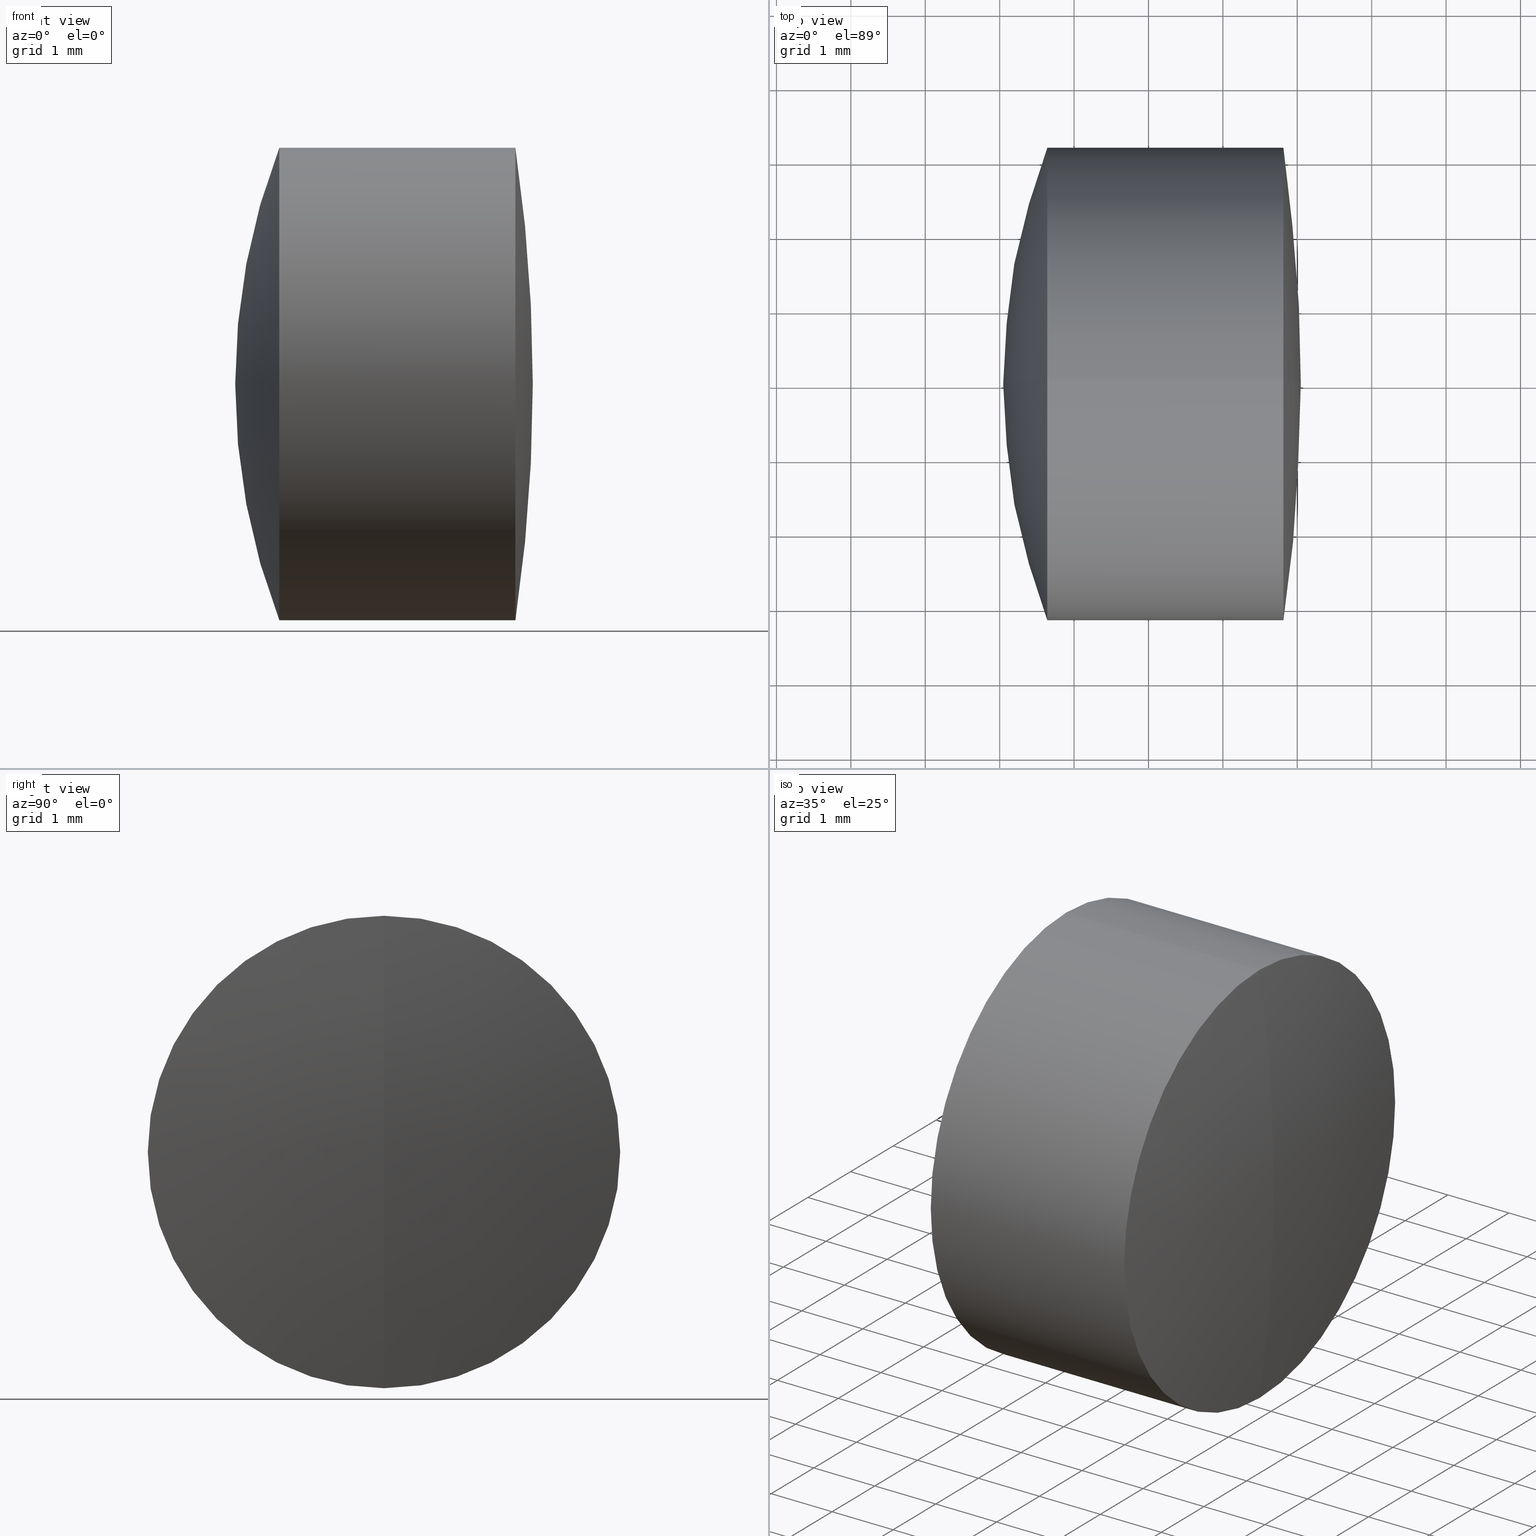
[diagram: canonical four-view strip — front | top / right | iso, engineering-drawing reading convention]
A machine part, canonical four-view strip (front | top / right | iso — engineering-drawing reading convention). The complete STEP part file that produces these views, byte-faithful:
ISO-10303-21;
HEADER;
FILE_DESCRIPTION (( 'STEP AP214' ),
    '1' );
FILE_NAME ('145014.STEP',
    '2019-05-08T06:32:17',
    ( 'user' ),
    ( '΢���й�' ),
    'SwSTEP 2.0',
    'SolidWorks 2016',
    '' );
FILE_SCHEMA (( 'AUTOMOTIVE_DESIGN' ));
ENDSEC;

DATA;
#1 = VECTOR ( 'NONE', #223, 1000.000000000000000 ) ;
#2 = DIRECTION ( 'NONE',  ( -1.000000000000000000, -0.0000000000000000000, -0.0000000000000000000 ) ) ;
#3 = ORIENTED_EDGE ( 'NONE', *, *, #89, .F. ) ;
#4 = DIRECTION ( 'NONE',  ( 0.0000000000000000000, 1.000000000000000000, 0.0000000000000000000 ) ) ;
#5 = CIRCLE ( 'NONE', #19, 3.175000000000000300 ) ;
#6 =( NAMED_UNIT ( * ) PLANE_ANGLE_UNIT ( ) SI_UNIT ( $, .RADIAN. ) );
#7 = DIRECTION ( 'NONE',  ( 0.0000000000000000000, 1.000000000000000000, -0.0000000000000000000 ) ) ;
#8 =( NAMED_UNIT ( * ) PLANE_ANGLE_UNIT ( ) SI_UNIT ( $, .RADIAN. ) );
#10 = DIRECTION ( 'NONE',  ( 0.0000000000000000000, 0.0000000000000000000, 1.000000000000000000 ) ) ;
#9 = DIRECTION ( 'NONE',  ( 0.0000000000000000000, 0.0000000000000000000, 1.000000000000000000 ) ) ;
#12 = DIRECTION ( 'NONE',  ( -1.000000000000000000, -0.0000000000000000000, -0.0000000000000000000 ) ) ;
#11 = DIRECTION ( 'NONE',  ( 0.0000000000000000000, 0.0000000000000000000, 1.000000000000000000 ) ) ;
#13 = ORIENTED_EDGE ( 'NONE', *, *, #86, .F. ) ;
#14 = VERTEX_POINT ( 'NONE', #37 ) ;
#15 = SPHERICAL_SURFACE ( 'NONE', #333, 6.599999999999998800 ) ;
#16 = SURFACE_STYLE_USAGE ( .BOTH. , #117 ) ;
#17 = UNCERTAINTY_MEASURE_WITH_UNIT (LENGTH_MEASURE( 1.000000000000000100E-005 ), #196, 'distance_accuracy_value', 'NONE');
#18 = PRESENTATION_LAYER_ASSIGNMENT (  '', '', ( #345 ) ) ;
#19 = AXIS2_PLACEMENT_3D ( 'NONE', #225, #36, #200 ) ;
#20 = ADVANCED_FACE ( 'NONE', ( #49 ), #53, .T. ) ;
#21 = EDGE_LOOP ( 'NONE', ( #337, #96, #157, #346 ) ) ;
#22 = CYLINDRICAL_SURFACE ( 'NONE', #217, 3.175000000000001600 ) ;
#23 = VERTEX_POINT ( 'NONE', #201 ) ;
#24 = VECTOR ( 'NONE', #28, 1000.000000000000000 ) ;
#25 = DIRECTION ( 'NONE',  ( 0.0000000000000000000, -1.224646799147353500E-016, 1.000000000000000000 ) ) ;
#26 = CARTESIAN_POINT ( 'NONE',  ( 2.813910375090960900, 3.888253587292846100E-016, -3.174999999999998000 ) ) ;
#28 = DIRECTION ( 'NONE',  ( -1.000000000000000000, -0.0000000000000000000, -0.0000000000000000000 ) ) ;
#27 = SURFACE_STYLE_USAGE ( .BOTH. , #218 ) ;
#30 = CARTESIAN_POINT ( 'NONE',  ( -9.702612178336682500, 0.0000000000000000000, 3.175000000000000300 ) ) ;
#29 = CARTESIAN_POINT ( 'NONE',  ( 0.7335758746331534400, 0.0000000000000000000, 3.175000000000004700 ) ) ;
#31 = AXIS2_PLACEMENT_3D ( 'NONE', #299, #268, #178 ) ;
#32 = SURFACE_STYLE_USAGE ( .BOTH. , #221 ) ;
#33 = ORIENTED_EDGE ( 'NONE', *, *, #124, .T. ) ;
#34 = FILL_AREA_STYLE_COLOUR ( '', #202 ) ;
#35 = ORIENTED_EDGE ( 'NONE', *, *, #124, .F. ) ;
#37 = CARTESIAN_POINT ( 'NONE',  ( -0.3598363093995273800, 0.0000000000000000000, -3.174999999999998500 ) ) ;
#36 = DIRECTION ( 'NONE',  ( -1.000000000000000000, -0.0000000000000000000, -0.0000000000000000000 ) ) ;
#38 = VECTOR ( 'NONE', #140, 1000.000000000000000 ) ;
#39 = CARTESIAN_POINT ( 'NONE',  ( -18.65256057380979400, 0.0000000000000000000, 0.0000000000000000000 ) ) ;
#40 = CARTESIAN_POINT ( 'NONE',  ( -9.702612178336682500, 3.888253587292846600E-016, -3.175000000000000300 ) ) ;
#41 = ADVANCED_FACE ( 'NONE', ( #129 ), #275, .T. ) ;
#42 = EDGE_LOOP ( 'NONE', ( #114, #33, #119 ) ) ;
#43 = FACE_OUTER_BOUND ( 'NONE', #42, .T. ) ;
#44 = ORIENTED_EDGE ( 'NONE', *, *, #205, .T. ) ;
#45 = EDGE_LOOP ( 'NONE', ( #339, #298, #233 ) ) ;
#46 = COLOUR_RGB ( '',1.000000000000000000, 1.000000000000000000, 1.000000000000000000 ) ;
#47 = AXIS2_PLACEMENT_3D ( 'NONE', #294, #87, #258 ) ;
#48 = ORIENTED_EDGE ( 'NONE', *, *, #123, .T. ) ;
#49 = FACE_OUTER_BOUND ( 'NONE', #273, .T. ) ;
#50 = DIRECTION ( 'NONE',  ( -1.000000000000000000, -0.0000000000000000000, -0.0000000000000000000 ) ) ;
#51 = VERTEX_POINT ( 'NONE', #88 ) ;
#52 = SPHERICAL_SURFACE ( 'NONE', #98, 6.599999999999997900 ) ;
#53 = CYLINDRICAL_SURFACE ( 'NONE', #212, 3.175000000000000300 ) ;
#54 = APPLICATION_PROTOCOL_DEFINITION ( 'draft international standard', 'automotive_design', 1998, #248 ) ;
#56 = DIRECTION ( 'NONE',  ( 0.0000000000000000000, 0.0000000000000000000, 1.000000000000000000 ) ) ;
#55 = FILL_AREA_STYLE ('',( #193 ) ) ;
#57 = FILL_AREA_STYLE ('',( #34 ) ) ;
#59 = DIRECTION ( 'NONE',  ( 0.0000000000000000000, 1.000000000000000000, 0.0000000000000000000 ) ) ;
#58 = DIRECTION ( 'NONE',  ( 0.0000000000000000000, 1.000000000000000000, 0.0000000000000000000 ) ) ;
#60 = DIRECTION ( 'NONE',  ( 0.0000000000000000000, 1.000000000000000000, 0.0000000000000000000 ) ) ;
#61 = DIRECTION ( 'NONE',  ( 0.0000000000000000000, 0.0000000000000000000, -1.000000000000000000 ) ) ;
#62 = VERTEX_POINT ( 'NONE', #259 ) ;
#63 = FACE_OUTER_BOUND ( 'NONE', #208, .T. ) ;
#64 = ORIENTED_EDGE ( 'NONE', *, *, #166, .T. ) ;
#65 = DIRECTION ( 'NONE',  ( -0.0000000000000000000, 1.000000000000000000, 1.224646799147353200E-016 ) ) ;
#66 = AXIS2_PLACEMENT_3D ( 'NONE', #265, #60, #11 ) ;
#67 = EDGE_CURVE ( 'NONE', #23, #343, #279, .T. ) ;
#68 = ADVANCED_FACE ( 'NONE', ( #43 ), #136, .T. ) ;
#69 = ORIENTED_EDGE ( 'NONE', *, *, #148, .T. ) ;
#70 = EDGE_CURVE ( 'NONE', #51, #14, #293, .T. ) ;
#71 = LINE ( 'NONE', #40, #134 ) ;
#72 = MANIFOLD_SOLID_BREP ( '��ת3', #288 ) ;
#73 = PRODUCT_DEFINITION_SHAPE ( 'NONE', 'NONE',  #262 ) ;
#74 = DIRECTION ( 'NONE',  ( 0.0000000000000000000, 0.0000000000000000000, 1.000000000000000000 ) ) ;
#75 = ORIENTED_EDGE ( 'NONE', *, *, #89, .T. ) ;
#76 = ORIENTED_EDGE ( 'NONE', *, *, #205, .F. ) ;
#77 = DIRECTION ( 'NONE',  ( 0.0000000000000000000, -1.000000000000000000, 0.0000000000000000000 ) ) ;
#78 = SURFACE_STYLE_FILL_AREA ( #231 ) ;
#80 = DIRECTION ( 'NONE',  ( -1.000000000000000000, -0.0000000000000000000, -0.0000000000000000000 ) ) ;
#79 = PRODUCT_CONTEXT ( 'NONE', #250, 'mechanical' ) ;
#81 = CARTESIAN_POINT ( 'NONE',  ( 0.7335758746331577700, 0.0000000000000000000, 0.0000000000000000000 ) ) ;
#82 = DIRECTION ( 'NONE',  ( -1.000000000000000000, -0.0000000000000000000, -0.0000000000000000000 ) ) ;
#83 = AXIS2_PLACEMENT_3D ( 'NONE', #141, #315, #172 ) ;
#85 = DIRECTION ( 'NONE',  ( -1.000000000000000000, -0.0000000000000000000, -0.0000000000000000000 ) ) ;
#84 = DIRECTION ( 'NONE',  ( 0.0000000000000000000, 0.0000000000000000000, 1.000000000000000000 ) ) ;
#86 = EDGE_CURVE ( 'NONE', #343, #323, #261, .T. ) ;
#88 = CARTESIAN_POINT ( 'NONE',  ( -0.3598363093995273800, -3.888253587292844600E-016, 3.174999999999998900 ) ) ;
#87 = DIRECTION ( 'NONE',  ( 0.0000000000000000000, -1.000000000000000000, -1.224646799147353200E-016 ) ) ;
#89 = EDGE_CURVE ( 'NONE', #14, #296, #206, .T. ) ;
#90 = ORIENTED_EDGE ( 'NONE', *, *, #92, .T. ) ;
#91 = CIRCLE ( 'NONE', #204, 6.599999999999997900 ) ;
#92 = EDGE_CURVE ( 'NONE', #173, #51, #329, .T. ) ;
#93 = PRESENTATION_STYLE_ASSIGNMENT (( #27 ) ) ;
#94 = EDGE_CURVE ( 'NONE', #173, #111, #185, .T. ) ;
#95 = ADVANCED_FACE ( 'NONE', ( #103 ), #245, .T. ) ;
#96 = ORIENTED_EDGE ( 'NONE', *, *, #106, .T. ) ;
#97 = CIRCLE ( 'NONE', #147, 3.174999999999998000 ) ;
#98 = AXIS2_PLACEMENT_3D ( 'NONE', #113, #58, #222 ) ;
#99 = ORIENTED_EDGE ( 'NONE', *, *, #213, .T. ) ;
#100 = EDGE_CURVE ( 'NONE', #138, #323, #326, .T. ) ;
#101 = ORIENTED_EDGE ( 'NONE', *, *, #94, .F. ) ;
#102 = DIRECTION ( 'NONE',  ( 0.0000000000000000000, -1.000000000000000000, 0.0000000000000000000 ) ) ;
#103 = FACE_OUTER_BOUND ( 'NONE', #153, .T. ) ;
#104 = AXIS2_PLACEMENT_3D ( 'NONE', #194, #7, #169 ) ;
#105 = DIRECTION ( 'NONE',  ( 0.0000000000000000000, -1.224646799147353200E-016, 1.000000000000000000 ) ) ;
#106 = EDGE_CURVE ( 'NONE', #138, #23, #97, .T. ) ;
#107 = DIRECTION ( 'NONE',  ( 0.0000000000000000000, 0.0000000000000000000, 1.000000000000000000 ) ) ;
#108 = SHAPE_DEFINITION_REPRESENTATION ( #73, #177 ) ;
#109 = CARTESIAN_POINT ( 'NONE',  ( -0.5519199926577972300, 3.888253587292848100E-016, -3.175000000000001600 ) ) ;
#110 = CARTESIAN_POINT ( 'NONE',  ( -5.052560573809792300, 0.0000000000000000000, -6.776263578034402700E-018 ) ) ;
#111 = VERTEX_POINT ( 'NONE', #192 ) ;
#112 = CARTESIAN_POINT ( 'NONE',  ( 7.847439426190207200, 0.0000000000000000000, 4.513112964038374400E-016 ) ) ;
#113 = CARTESIAN_POINT ( 'NONE',  ( -5.052560573809792300, 0.0000000000000000000, -6.776263578034402700E-018 ) ) ;
#114 = ORIENTED_EDGE ( 'NONE', *, *, #156, .F. ) ;
#115 = CARTESIAN_POINT ( 'NONE',  ( -9.702612178336682500, 0.0000000000000000000, 0.0000000000000000000 ) ) ;
#116 = ORIENTED_EDGE ( 'NONE', *, *, #123, .F. ) ;
#117 = SURFACE_SIDE_STYLE ('',( #78 ) ) ;
#118 = FACE_OUTER_BOUND ( 'NONE', #336, .T. ) ;
#119 = ORIENTED_EDGE ( 'NONE', *, *, #142, .F. ) ;
#120 = AXIS2_PLACEMENT_3D ( 'NONE', #110, #317, #289 ) ;
#121 = ORIENTED_EDGE ( 'NONE', *, *, #100, .T. ) ;
#122 = ADVANCED_FACE ( 'NONE', ( #238 ), #22, .T. ) ;
#123 = EDGE_CURVE ( 'NONE', #181, #323, #91, .T. ) ;
#124 = EDGE_CURVE ( 'NONE', #62, #138, #175, .T. ) ;
#125 = ORIENTED_EDGE ( 'NONE', *, *, #156, .T. ) ;
#126 = EDGE_CURVE ( 'NONE', #323, #343, #320, .T. ) ;
#127 = AXIS2_PLACEMENT_3D ( 'NONE', #81, #251, #56 ) ;
#128 = CIRCLE ( 'NONE', #47, 8.800000000000000700 ) ;
#129 = FACE_OUTER_BOUND ( 'NONE', #242, .T. ) ;
#130 = EDGE_CURVE ( 'NONE', #152, #173, #160, .T. ) ;
#131 = PRESENTATION_STYLE_ASSIGNMENT (( #32 ) ) ;
#132 = CARTESIAN_POINT ( 'NONE',  ( 1.547439426190206700, 0.0000000000000000000, 3.973571801405921000E-016 ) ) ;
#133 = DIRECTION ( 'NONE',  ( 0.0000000000000000000, 0.0000000000000000000, 1.000000000000000000 ) ) ;
#134 = VECTOR ( 'NONE', #50, 1000.000000000000000 ) ;
#135 = CARTESIAN_POINT ( 'NONE',  ( -5.052560573809792300, 0.0000000000000000000, -6.776263578034402700E-018 ) ) ;
#136 = SPHERICAL_SURFACE ( 'NONE', #234, 21.69999999999999900 ) ;
#137 = CARTESIAN_POINT ( 'NONE',  ( -0.5519199926577972300, 0.0000000000000000000, 0.0000000000000000000 ) ) ;
#138 = VERTEX_POINT ( 'NONE', #26 ) ;
#139 =( NAMED_UNIT ( * ) PLANE_ANGLE_UNIT ( ) SI_UNIT ( $, .RADIAN. ) );
#140 = DIRECTION ( 'NONE',  ( -1.000000000000000000, -0.0000000000000000000, -0.0000000000000000000 ) ) ;
#141 = CARTESIAN_POINT ( 'NONE',  ( 0.7335758746331577700, 0.0000000000000000000, 0.0000000000000000000 ) ) ;
#142 = EDGE_CURVE ( 'NONE', #23, #138, #309, .T. ) ;
#143 = PRESENTATION_LAYER_ASSIGNMENT (  '', '', ( #211 ) ) ;
#144 = EDGE_LOOP ( 'NONE', ( #227, #224, #101 ) ) ;
#145 = DIRECTION ( 'NONE',  ( 0.0000000000000000000, 0.0000000000000000000, 1.000000000000000000 ) ) ;
#146 =( NAMED_UNIT ( * ) PLANE_ANGLE_UNIT ( ) SI_UNIT ( $, .RADIAN. ) );
#147 = AXIS2_PLACEMENT_3D ( 'NONE', #285, #80, #249 ) ;
#148 = EDGE_CURVE ( 'NONE', #181, #343, #229, .T. ) ;
#149 =( NAMED_UNIT ( * ) SI_UNIT ( $, .STERADIAN. ) SOLID_ANGLE_UNIT ( ) );
#150 = UNCERTAINTY_MEASURE_WITH_UNIT (LENGTH_MEASURE( 1.000000000000000100E-005 ), #191, 'distance_accuracy_value', 'NONE');
#151 = ADVANCED_FACE ( 'NONE', ( #154 ), #15, .T. ) ;
#152 = VERTEX_POINT ( 'NONE', #132 ) ;
#153 = EDGE_LOOP ( 'NONE', ( #44, #99, #3 ) ) ;
#154 = FACE_OUTER_BOUND ( 'NONE', #45, .T. ) ;
#155 = AXIS2_PLACEMENT_3D ( 'NONE', #230, #338, #9 ) ;
#156 = EDGE_CURVE ( 'NONE', #62, #23, #304, .T. ) ;
#157 = ORIENTED_EDGE ( 'NONE', *, *, #67, .T. ) ;
#158 = MECHANICAL_DESIGN_GEOMETRIC_PRESENTATION_REPRESENTATION (  '', ( #211 ), #184 ) ;
#159 = DIRECTION ( 'NONE',  ( 0.0000000000000000000, 0.0000000000000000000, 1.000000000000000000 ) ) ;
#160 = CIRCLE ( 'NONE', #266, 6.599999999999998800 ) ;
#161 = CARTESIAN_POINT ( 'NONE',  ( 0.7335758746331534400, 0.0000000000000000000, 0.0000000000000000000 ) ) ;
#162 = MANIFOLD_SOLID_BREP ( '��ת1', #241 ) ;
#163 = EDGE_CURVE ( 'NONE', #152, #111, #297, .T. ) ;
#164 = AXIS2_PLACEMENT_3D ( 'NONE', #112, #287, #219 ) ;
#165 = SURFACE_STYLE_FILL_AREA ( #55 ) ;
#166 = EDGE_CURVE ( 'NONE', #111, #14, #71, .T. ) ;
#168 = DIRECTION ( 'NONE',  ( 0.0000000000000000000, 0.0000000000000000000, 1.000000000000000000 ) ) ;
#167 =( NAMED_UNIT ( * ) SI_UNIT ( $, .STERADIAN. ) SOLID_ANGLE_UNIT ( ) );
#169 = DIRECTION ( 'NONE',  ( 0.0000000000000000000, 0.0000000000000000000, 1.000000000000000000 ) ) ;
#170 = SURFACE_STYLE_FILL_AREA ( #57 ) ;
#171 =( NAMED_UNIT ( * ) SI_UNIT ( $, .STERADIAN. ) SOLID_ANGLE_UNIT ( ) );
#172 = DIRECTION ( 'NONE',  ( 0.0000000000000000000, 0.0000000000000000000, 1.000000000000000000 ) ) ;
#173 = VERTEX_POINT ( 'NONE', #264 ) ;
#174 = ORIENTED_EDGE ( 'NONE', *, *, #166, .F. ) ;
#175 = CIRCLE ( 'NONE', #186, 21.69999999999999900 ) ;
#176 =( LENGTH_UNIT ( ) NAMED_UNIT ( * ) SI_UNIT ( .MILLI., .METRE. ) );
#177 = ADVANCED_BREP_SHAPE_REPRESENTATION ( '145014', ( #162, #72, #235 ), #180 ) ;
#178 = DIRECTION ( 'NONE',  ( 0.0000000000000000000, 0.0000000000000000000, 1.000000000000000000 ) ) ;
#179 = CARTESIAN_POINT ( 'NONE',  ( -5.052560573809792300, 0.0000000000000000000, -6.776263578034402700E-018 ) ) ;
#180 =( GEOMETRIC_REPRESENTATION_CONTEXT ( 3 ) GLOBAL_UNCERTAINTY_ASSIGNED_CONTEXT ( ( #240 ) ) GLOBAL_UNIT_ASSIGNED_CONTEXT ( ( #334, #139, #314 ) ) REPRESENTATION_CONTEXT ( 'NONE', 'WORKASPACE' ) );
#181 = VERTEX_POINT ( 'NONE', #341 ) ;
#182 = AXIS2_PLACEMENT_3D ( 'NONE', #226, #263, #318 ) ;
#183 = ADVANCED_FACE ( 'NONE', ( #209 ), #344, .T. ) ;
#184 =( GEOMETRIC_REPRESENTATION_CONTEXT ( 3 ) GLOBAL_UNCERTAINTY_ASSIGNED_CONTEXT ( ( #150 ) ) GLOBAL_UNIT_ASSIGNED_CONTEXT ( ( #191, #6, #167 ) ) REPRESENTATION_CONTEXT ( 'NONE', 'WORKASPACE' ) );
#185 = CIRCLE ( 'NONE', #127, 3.175000000000000300 ) ;
#186 = AXIS2_PLACEMENT_3D ( 'NONE', #247, #215, #25 ) ;
#187 = EDGE_LOOP ( 'NONE', ( #35, #125, #214 ) ) ;
#188 = CARTESIAN_POINT ( 'NONE',  ( 2.813910375090960900, 0.0000000000000000000, 0.0000000000000000000 ) ) ;
#189 = ORIENTED_EDGE ( 'NONE', *, *, #213, .F. ) ;
#190 = FACE_OUTER_BOUND ( 'NONE', #21, .T. ) ;
#192 = CARTESIAN_POINT ( 'NONE',  ( 0.7335758746331577700, 3.888253587292846600E-016, -3.175000000000000300 ) ) ;
#191 =( LENGTH_UNIT ( ) NAMED_UNIT ( * ) SI_UNIT ( .MILLI., .METRE. ) );
#194 = CARTESIAN_POINT ( 'NONE',  ( 7.847439426190207200, 0.0000000000000000000, 4.513112964038374400E-016 ) ) ;
#193 = FILL_AREA_STYLE_COLOUR ( '', #46 ) ;
#195 = ORIENTED_EDGE ( 'NONE', *, *, #70, .T. ) ;
#196 =( LENGTH_UNIT ( ) NAMED_UNIT ( * ) SI_UNIT ( .MILLI., .METRE. ) );
#197 = AXIS2_PLACEMENT_3D ( 'NONE', #252, #220, #84 ) ;
#198 = CARTESIAN_POINT ( 'NONE',  ( -18.65256057380979400, 0.0000000000000000000, 0.0000000000000000000 ) ) ;
#199 = AXIS2_PLACEMENT_3D ( 'NONE', #292, #85, #256 ) ;
#201 = CARTESIAN_POINT ( 'NONE',  ( 2.813910375090960900, 0.0000000000000000000, 3.174999999999998000 ) ) ;
#200 = DIRECTION ( 'NONE',  ( 0.0000000000000000000, 0.0000000000000000000, 1.000000000000000000 ) ) ;
#202 = COLOUR_RGB ( '',1.000000000000000000, 1.000000000000000000, 1.000000000000000000 ) ;
#203 = SPHERICAL_SURFACE ( 'NONE', #66, 21.69999999999999900 ) ;
#204 = AXIS2_PLACEMENT_3D ( 'NONE', #135, #310, #105 ) ;
#205 = EDGE_CURVE ( 'NONE', #14, #51, #5, .T. ) ;
#206 = CIRCLE ( 'NONE', #104, 8.800000000000000700 ) ;
#207 = ADVANCED_FACE ( 'NONE', ( #282 ), #203, .T. ) ;
#208 = EDGE_LOOP ( 'NONE', ( #116, #69, #257 ) ) ;
#209 = FACE_OUTER_BOUND ( 'NONE', #144, .T. ) ;
#210 = ORIENTED_EDGE ( 'NONE', *, *, #236, .T. ) ;
#211 = STYLED_ITEM ( 'NONE', ( #93 ), #177 ) ;
#212 = AXIS2_PLACEMENT_3D ( 'NONE', #115, #12, #145 ) ;
#213 = EDGE_CURVE ( 'NONE', #51, #296, #128, .T. ) ;
#214 = ORIENTED_EDGE ( 'NONE', *, *, #106, .F. ) ;
#215 = DIRECTION ( 'NONE',  ( -0.0000000000000000000, 1.000000000000000000, 1.224646799147353200E-016 ) ) ;
#216 = COLOUR_RGB ( '',1.000000000000000000, 1.000000000000000000, 1.000000000000000000 ) ;
#217 = AXIS2_PLACEMENT_3D ( 'NONE', #137, #313, #168 ) ;
#219 = DIRECTION ( 'NONE',  ( 0.0000000000000000000, 0.0000000000000000000, -1.000000000000000000 ) ) ;
#218 = SURFACE_SIDE_STYLE ('',( #165 ) ) ;
#220 = DIRECTION ( 'NONE',  ( -1.000000000000000000, -0.0000000000000000000, -0.0000000000000000000 ) ) ;
#221 = SURFACE_SIDE_STYLE ('',( #170 ) ) ;
#223 = DIRECTION ( 'NONE',  ( -1.000000000000000000, -0.0000000000000000000, -0.0000000000000000000 ) ) ;
#222 = DIRECTION ( 'NONE',  ( 0.0000000000000000000, 0.0000000000000000000, 1.000000000000000000 ) ) ;
#224 = ORIENTED_EDGE ( 'NONE', *, *, #163, .T. ) ;
#226 = CARTESIAN_POINT ( 'NONE',  ( 7.847439426190207200, 0.0000000000000000000, 4.513112964038374400E-016 ) ) ;
#225 = CARTESIAN_POINT ( 'NONE',  ( -0.3598363093995273800, 0.0000000000000000000, 0.0000000000000000000 ) ) ;
#227 = ORIENTED_EDGE ( 'NONE', *, *, #130, .F. ) ;
#228 = DIRECTION ( 'NONE',  ( 0.0000000000000000000, -1.000000000000000000, 0.0000000000000000000 ) ) ;
#229 = CIRCLE ( 'NONE', #305, 6.599999999999997900 ) ;
#230 = CARTESIAN_POINT ( 'NONE',  ( -9.702612178336682500, 0.0000000000000000000, 0.0000000000000000000 ) ) ;
#231 = FILL_AREA_STYLE ('',( #244 ) ) ;
#232 = ADVANCED_FACE ( 'NONE', ( #340 ), #52, .F. ) ;
#233 = ORIENTED_EDGE ( 'NONE', *, *, #236, .F. ) ;
#234 = AXIS2_PLACEMENT_3D ( 'NONE', #198, #59, #10 ) ;
#235 = AXIS2_PLACEMENT_3D ( 'NONE', #312, #107, #284 ) ;
#236 = EDGE_CURVE ( 'NONE', #111, #173, #274, .T. ) ;
#237 = PRESENTATION_STYLE_ASSIGNMENT (( #16 ) ) ;
#238 = FACE_OUTER_BOUND ( 'NONE', #302, .T. ) ;
#239 = AXIS2_PLACEMENT_3D ( 'NONE', #161, #331, #133 ) ;
#240 = UNCERTAINTY_MEASURE_WITH_UNIT (LENGTH_MEASURE( 1.000000000000000100E-005 ), #334, 'distance_accuracy_value', 'NONE');
#241 = CLOSED_SHELL ( 'NONE', ( #183, #272, #95, #41, #20, #151 ) ) ;
#242 = EDGE_LOOP ( 'NONE', ( #189, #195, #75 ) ) ;
#243 = ORIENTED_EDGE ( 'NONE', *, *, #67, .F. ) ;
#244 = FILL_AREA_STYLE_COLOUR ( '', #216 ) ;
#245 = SPHERICAL_SURFACE ( 'NONE', #164, 8.800000000000000700 ) ;
#246 = DIRECTION ( 'NONE',  ( 0.0000000000000000000, 0.0000000000000000000, -1.000000000000000000 ) ) ;
#247 = CARTESIAN_POINT ( 'NONE',  ( -18.65256057380979400, 0.0000000000000000000, 0.0000000000000000000 ) ) ;
#249 = DIRECTION ( 'NONE',  ( 0.0000000000000000000, 0.0000000000000000000, 1.000000000000000000 ) ) ;
#248 = APPLICATION_CONTEXT ( 'automotive_design' ) ;
#251 = DIRECTION ( 'NONE',  ( -1.000000000000000000, -0.0000000000000000000, -0.0000000000000000000 ) ) ;
#250 = APPLICATION_CONTEXT ( 'automotive_design' ) ;
#253 = DIRECTION ( 'NONE',  ( 0.0000000000000000000, 0.0000000000000000000, 1.000000000000000000 ) ) ;
#252 = CARTESIAN_POINT ( 'NONE',  ( -0.5519199926577972300, 0.0000000000000000000, 0.0000000000000000000 ) ) ;
#254 = ORIENTED_EDGE ( 'NONE', *, *, #92, .F. ) ;
#256 = DIRECTION ( 'NONE',  ( 0.0000000000000000000, 0.0000000000000000000, 1.000000000000000000 ) ) ;
#255 = CARTESIAN_POINT ( 'NONE',  ( -0.9525605738097929800, 0.0000000000000000000, -8.753329522099799000E-017 ) ) ;
#257 = ORIENTED_EDGE ( 'NONE', *, *, #86, .T. ) ;
#259 = CARTESIAN_POINT ( 'NONE',  ( 3.047439426190207400, 0.0000000000000000000, 1.328741777074878400E-015 ) ) ;
#258 = DIRECTION ( 'NONE',  ( 0.0000000000000000000, 1.224646799147353200E-016, -1.000000000000000000 ) ) ;
#260 = STYLED_ITEM ( 'NONE', ( #131 ), #72 ) ;
#261 = CIRCLE ( 'NONE', #330, 3.175000000000004700 ) ;
#262 = PRODUCT_DEFINITION ( 'δ֪', '', #278, #270 ) ;
#263 = DIRECTION ( 'NONE',  ( -0.0000000000000000000, -1.000000000000000000, -0.0000000000000000000 ) ) ;
#264 = CARTESIAN_POINT ( 'NONE',  ( 0.7335758746331577700, 0.0000000000000000000, 3.175000000000000300 ) ) ;
#265 = CARTESIAN_POINT ( 'NONE',  ( -18.65256057380979400, 0.0000000000000000000, 0.0000000000000000000 ) ) ;
#266 = AXIS2_PLACEMENT_3D ( 'NONE', #280, #77, #246 ) ;
#267 = CYLINDRICAL_SURFACE ( 'NONE', #155, 3.175000000000000300 ) ;
#268 = DIRECTION ( 'NONE',  ( 0.0000000000000000000, 1.000000000000000000, 0.0000000000000000000 ) ) ;
#269 = DIRECTION ( 'NONE',  ( 0.0000000000000000000, -1.224646799147353200E-016, 1.000000000000000000 ) ) ;
#270 = PRODUCT_DEFINITION_CONTEXT ( 'detailed design', #248, 'design' ) ;
#271 = ORIENTED_EDGE ( 'NONE', *, *, #126, .T. ) ;
#272 = ADVANCED_FACE ( 'NONE', ( #118 ), #267, .T. ) ;
#273 = EDGE_LOOP ( 'NONE', ( #174, #210, #90, #76 ) ) ;
#274 = CIRCLE ( 'NONE', #83, 3.175000000000000300 ) ;
#275 = SPHERICAL_SURFACE ( 'NONE', #182, 8.800000000000000700 ) ;
#276 = PRESENTATION_LAYER_ASSIGNMENT (  '', '', ( #260 ) ) ;
#277 = DIRECTION ( 'NONE',  ( 0.0000000000000000000, 0.0000000000000000000, -1.000000000000000000 ) ) ;
#278 = PRODUCT_DEFINITION_FORMATION_WITH_SPECIFIED_SOURCE ( '�κ�', '', #300, .NOT_KNOWN. ) ;
#279 = LINE ( 'NONE', #295, #1 ) ;
#280 = CARTESIAN_POINT ( 'NONE',  ( -5.052560573809792300, 0.0000000000000000000, -6.776263578034402700E-018 ) ) ;
#281 = ORIENTED_EDGE ( 'NONE', *, *, #142, .T. ) ;
#282 = FACE_OUTER_BOUND ( 'NONE', #187, .T. ) ;
#283 = AXIS2_PLACEMENT_3D ( 'NONE', #188, #2, #159 ) ;
#285 = CARTESIAN_POINT ( 'NONE',  ( 2.813910375090960900, 0.0000000000000000000, 0.0000000000000000000 ) ) ;
#284 = DIRECTION ( 'NONE',  ( 1.000000000000000000, 0.0000000000000000000, 0.0000000000000000000 ) ) ;
#287 = DIRECTION ( 'NONE',  ( -0.0000000000000000000, -1.000000000000000000, -0.0000000000000000000 ) ) ;
#286 = APPLICATION_PROTOCOL_DEFINITION ( 'draft international standard', 'automotive_design', 1998, #250 ) ;
#288 = CLOSED_SHELL ( 'NONE', ( #68, #122, #232, #325, #342, #207 ) ) ;
#290 = CARTESIAN_POINT ( 'NONE',  ( 0.7335758746331534400, 0.0000000000000000000, 0.0000000000000000000 ) ) ;
#289 = DIRECTION ( 'NONE',  ( 0.0000000000000000000, 0.0000000000000000000, 1.000000000000000000 ) ) ;
#292 = CARTESIAN_POINT ( 'NONE',  ( -0.3598363093995273800, 0.0000000000000000000, 0.0000000000000000000 ) ) ;
#291 = CARTESIAN_POINT ( 'NONE',  ( 0.7335758746331534400, 3.888253587292852000E-016, -3.175000000000004700 ) ) ;
#293 = CIRCLE ( 'NONE', #199, 3.175000000000000300 ) ;
#295 = CARTESIAN_POINT ( 'NONE',  ( -0.5519199926577972300, 0.0000000000000000000, 3.175000000000001600 ) ) ;
#294 = CARTESIAN_POINT ( 'NONE',  ( 7.847439426190207200, 0.0000000000000000000, 4.513112964038374400E-016 ) ) ;
#296 = VERTEX_POINT ( 'NONE', #255 ) ;
#297 = CIRCLE ( 'NONE', #347, 6.599999999999998800 ) ;
#298 = ORIENTED_EDGE ( 'NONE', *, *, #130, .T. ) ;
#299 = CARTESIAN_POINT ( 'NONE',  ( -5.052560573809792300, 0.0000000000000000000, -6.776263578034402700E-018 ) ) ;
#300 = PRODUCT ( '145014', '145014', '', ( #79 ) ) ;
#301 = MECHANICAL_DESIGN_GEOMETRIC_PRESENTATION_REPRESENTATION (  '', ( #260 ), #319 ) ;
#302 = EDGE_LOOP ( 'NONE', ( #281, #121, #13, #243 ) ) ;
#303 = PRODUCT_RELATED_PRODUCT_CATEGORY ( 'part', '', ( #300 ) ) ;
#304 = CIRCLE ( 'NONE', #321, 21.69999999999999900 ) ;
#305 = AXIS2_PLACEMENT_3D ( 'NONE', #307, #102, #277 ) ;
#306 = ORIENTED_EDGE ( 'NONE', *, *, #148, .F. ) ;
#307 = CARTESIAN_POINT ( 'NONE',  ( -5.052560573809792300, 0.0000000000000000000, -6.776263578034402700E-018 ) ) ;
#308 = CARTESIAN_POINT ( 'NONE',  ( -5.052560573809792300, 0.0000000000000000000, -6.776263578034402700E-018 ) ) ;
#309 = CIRCLE ( 'NONE', #283, 3.174999999999998000 ) ;
#310 = DIRECTION ( 'NONE',  ( -0.0000000000000000000, 1.000000000000000000, 1.224646799147353200E-016 ) ) ;
#311 = UNCERTAINTY_MEASURE_WITH_UNIT (LENGTH_MEASURE( 1.000000000000000100E-005 ), #176, 'distance_accuracy_value', 'NONE');
#313 = DIRECTION ( 'NONE',  ( -1.000000000000000000, -0.0000000000000000000, -0.0000000000000000000 ) ) ;
#312 = CARTESIAN_POINT ( 'NONE',  ( 0.0000000000000000000, 0.0000000000000000000, 0.0000000000000000000 ) ) ;
#314 =( NAMED_UNIT ( * ) SI_UNIT ( $, .STERADIAN. ) SOLID_ANGLE_UNIT ( ) );
#315 = DIRECTION ( 'NONE',  ( -1.000000000000000000, -0.0000000000000000000, -0.0000000000000000000 ) ) ;
#316 = ORIENTED_EDGE ( 'NONE', *, *, #70, .F. ) ;
#318 = DIRECTION ( 'NONE',  ( 0.0000000000000000000, 0.0000000000000000000, -1.000000000000000000 ) ) ;
#317 = DIRECTION ( 'NONE',  ( 0.0000000000000000000, 1.000000000000000000, 0.0000000000000000000 ) ) ;
#319 =( GEOMETRIC_REPRESENTATION_CONTEXT ( 3 ) GLOBAL_UNCERTAINTY_ASSIGNED_CONTEXT ( ( #17 ) ) GLOBAL_UNIT_ASSIGNED_CONTEXT ( ( #196, #8, #171 ) ) REPRESENTATION_CONTEXT ( 'NONE', 'WORKASPACE' ) );
#320 = CIRCLE ( 'NONE', #239, 3.175000000000004700 ) ;
#321 = AXIS2_PLACEMENT_3D ( 'NONE', #39, #228, #61 ) ;
#322 = MECHANICAL_DESIGN_GEOMETRIC_PRESENTATION_REPRESENTATION (  '', ( #345 ), #335 ) ;
#323 = VERTEX_POINT ( 'NONE', #291 ) ;
#324 = ORIENTED_EDGE ( 'NONE', *, *, #94, .T. ) ;
#325 = ADVANCED_FACE ( 'NONE', ( #63 ), #332, .F. ) ;
#326 = LINE ( 'NONE', #109, #24 ) ;
#327 = CYLINDRICAL_SURFACE ( 'NONE', #197, 3.175000000000001600 ) ;
#328 = EDGE_LOOP ( 'NONE', ( #306, #48, #271 ) ) ;
#329 = LINE ( 'NONE', #30, #38 ) ;
#330 = AXIS2_PLACEMENT_3D ( 'NONE', #290, #82, #253 ) ;
#331 = DIRECTION ( 'NONE',  ( -1.000000000000000000, -0.0000000000000000000, -0.0000000000000000000 ) ) ;
#332 = SPHERICAL_SURFACE ( 'NONE', #120, 6.599999999999997900 ) ;
#333 = AXIS2_PLACEMENT_3D ( 'NONE', #308, #4, #74 ) ;
#334 =( LENGTH_UNIT ( ) NAMED_UNIT ( * ) SI_UNIT ( .MILLI., .METRE. ) );
#335 =( GEOMETRIC_REPRESENTATION_CONTEXT ( 3 ) GLOBAL_UNCERTAINTY_ASSIGNED_CONTEXT ( ( #311 ) ) GLOBAL_UNIT_ASSIGNED_CONTEXT ( ( #176, #146, #149 ) ) REPRESENTATION_CONTEXT ( 'NONE', 'WORKASPACE' ) );
#336 = EDGE_LOOP ( 'NONE', ( #324, #64, #316, #254 ) ) ;
#337 = ORIENTED_EDGE ( 'NONE', *, *, #100, .F. ) ;
#338 = DIRECTION ( 'NONE',  ( -1.000000000000000000, -0.0000000000000000000, -0.0000000000000000000 ) ) ;
#339 = ORIENTED_EDGE ( 'NONE', *, *, #163, .F. ) ;
#340 = FACE_OUTER_BOUND ( 'NONE', #328, .T. ) ;
#341 = CARTESIAN_POINT ( 'NONE',  ( 1.547439426190205800, 0.0000000000000000000, 3.973571801405920500E-016 ) ) ;
#342 = ADVANCED_FACE ( 'NONE', ( #190 ), #327, .T. ) ;
#343 = VERTEX_POINT ( 'NONE', #29 ) ;
#344 = SPHERICAL_SURFACE ( 'NONE', #31, 6.599999999999998800 ) ;
#345 = STYLED_ITEM ( 'NONE', ( #237 ), #162 ) ;
#346 = ORIENTED_EDGE ( 'NONE', *, *, #126, .F. ) ;
#347 = AXIS2_PLACEMENT_3D ( 'NONE', #179, #65, #269 ) ;
ENDSEC;
END-ISO-10303-21;
